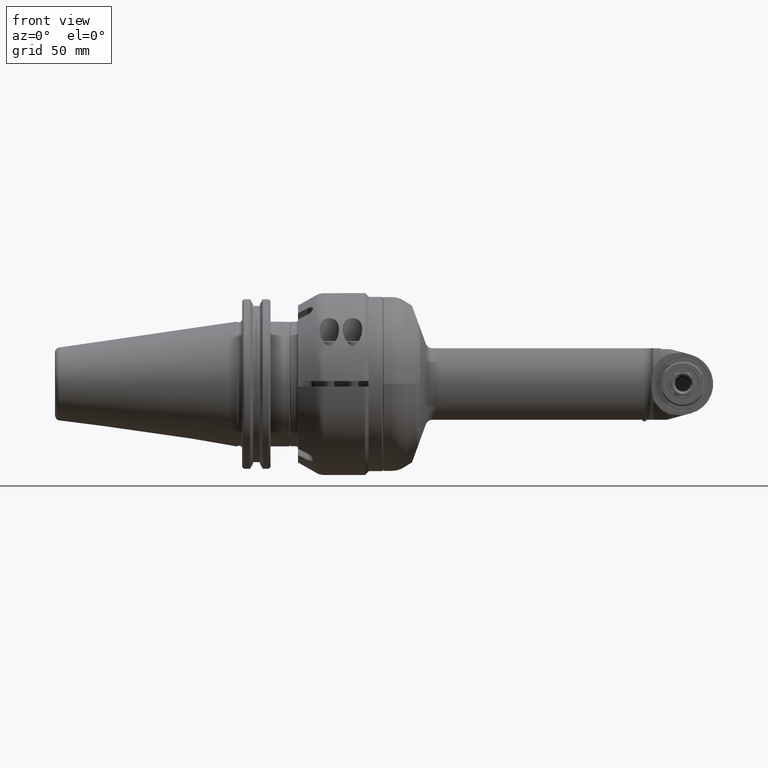
[diagram: clean part render]
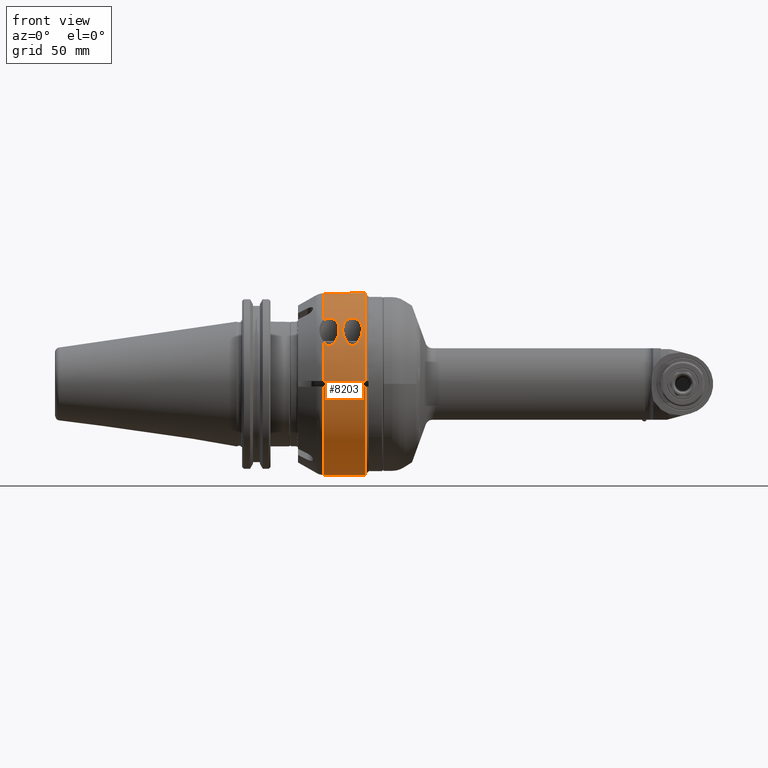
[diagram: same view with one face highlighted and labeled with its STEP entity id]
A machine part, front view. The second image highlights one B-rep face of the part: STEP entity #8203.
In plain terms, the highlighted cylindrical surface (partial cylindrical patch) has radius 51 mm, axis along (1, 0, 0).
Its self-contained STEP definition (entity closure, byte-faithful):
#511=FACE_BOUND('',#1630,.T.);
#713=B_SPLINE_CURVE_WITH_KNOTS('',3,(#12180,#12181,#12182,#12183,#12184,
#12185),.UNSPECIFIED.,.F.,.F.,(4,2,4),(-0.351622839102922,-0.201072510356838,
0.),.UNSPECIFIED.);
#714=B_SPLINE_CURVE_WITH_KNOTS('',3,(#12187,#12188,#12189,#12190,#12191,
#12192,#12193,#12194,#12195,#12196,#12197,#12198,#12199,#12200,#12201,#12202,
#12203,#12204,#12205,#12206,#12207,#12208,#12209,#12210,#12211,#12212),
 .UNSPECIFIED.,.F.,.F.,(4,2,2,2,2,2,2,2,2,2,2,2,4),(0.,0.201072510356838,
0.402145020713677,0.729275948801668,1.05640687688966,1.45814522272358,1.85988356855749,
2.08063520459886,2.19101102261954,2.30138684064023,2.41176265866091,2.52213847668159,
2.7154535046118),.UNSPECIFIED.);
#715=B_SPLINE_CURVE_WITH_KNOTS('',3,(#12218,#12219,#12220,#12221,#12222,
#12223,#12224,#12225,#12226,#12227,#12228,#12229,#12230,#12231,#12232,#12233,
#12234,#12235,#12236,#12237,#12238,#12239,#12240),.UNSPECIFIED.,.F.,.F.,
(4,2,2,2,2,3,2,2,2,2,4),(-1.24497996375057,-0.843241617916652,-0.441503272082734,
-0.220751636041367,-0.110375818020684,0.,0.110375818020684,0.220751636041367,
0.441503272082734,0.843241617916652,1.24497996375057),.UNSPECIFIED.);
#716=B_SPLINE_CURVE_WITH_KNOTS('',3,(#12241,#12242,#12243,#12244,#12245,
#12246,#12247,#12248,#12249,#12250,#12251,#12252,#12253,#12254,#12255,#12256,
#12257,#12258),.UNSPECIFIED.,.F.,.F.,(4,2,2,2,2,2,2,2,4),(1.24497996375057,
1.57211089183856,1.89924181992655,2.10031433028339,2.30138684064023,2.50245935099707,
2.70353186135391,3.0306627894419,3.35779371752989),.UNSPECIFIED.);
#1140=FACE_OUTER_BOUND('',#1629,.T.);
#1629=EDGE_LOOP('',(#5702,#5703,#5704,#5705,#5706,#5707,#5708,#5709,#5710,
#5711,#5712));
#1630=EDGE_LOOP('',(#5713,#5714));
#2186=LINE('',#12123,#2735);
#2188=LINE('',#12127,#2737);
#2194=LINE('',#12174,#2743);
#2195=LINE('',#12215,#2744);
#2735=VECTOR('',#9738,20.23205080757);
#2737=VECTOR('',#9740,20.23205080757);
#2743=VECTOR('',#9752,23.23206191748);
#2744=VECTOR('',#9761,23.23206611221);
#3287=CIRCLE('',#8808,51.);
#3288=CIRCLE('',#8809,51.);
#3289=CIRCLE('',#8810,51.);
#3290=CIRCLE('',#8811,51.);
#3291=CIRCLE('',#8812,51.);
#3693=VERTEX_POINT('',#12121);
#3694=VERTEX_POINT('',#12122);
#3695=VERTEX_POINT('',#12124);
#3696=VERTEX_POINT('',#12126);
#3706=VERTEX_POINT('',#12170);
#3707=VERTEX_POINT('',#12171);
#3708=VERTEX_POINT('',#12173);
#3709=VERTEX_POINT('',#12177);
#3710=VERTEX_POINT('',#12179);
#3711=VERTEX_POINT('',#12186);
#3712=VERTEX_POINT('',#12213);
#3713=VERTEX_POINT('',#12216);
#3714=VERTEX_POINT('',#12217);
#4483=EDGE_CURVE('',#3693,#3694,#2186,.T.);
#4485=EDGE_CURVE('',#3696,#3695,#2188,.T.);
#4496=EDGE_CURVE('',#3706,#3707,#3287,.T.);
#4497=EDGE_CURVE('',#3706,#3708,#2194,.T.);
#4498=EDGE_CURVE('',#3696,#3708,#3288,.T.);
#4499=EDGE_CURVE('',#3693,#3695,#3289,.T.);
#4500=EDGE_CURVE('',#3709,#3694,#3290,.T.);
#4501=EDGE_CURVE('',#3709,#3710,#713,.T.);
#4502=EDGE_CURVE('',#3710,#3711,#714,.T.);
#4503=EDGE_CURVE('',#3712,#3711,#3291,.T.);
#4504=EDGE_CURVE('',#3712,#3707,#2195,.T.);
#4505=EDGE_CURVE('',#3713,#3714,#715,.T.);
#4506=EDGE_CURVE('',#3714,#3713,#716,.T.);
#5702=ORIENTED_EDGE('',*,*,#4496,.F.);
#5703=ORIENTED_EDGE('',*,*,#4497,.T.);
#5704=ORIENTED_EDGE('',*,*,#4498,.F.);
#5705=ORIENTED_EDGE('',*,*,#4485,.T.);
#5706=ORIENTED_EDGE('',*,*,#4499,.F.);
#5707=ORIENTED_EDGE('',*,*,#4483,.T.);
#5708=ORIENTED_EDGE('',*,*,#4500,.F.);
#5709=ORIENTED_EDGE('',*,*,#4501,.T.);
#5710=ORIENTED_EDGE('',*,*,#4502,.T.);
#5711=ORIENTED_EDGE('',*,*,#4503,.F.);
#5712=ORIENTED_EDGE('',*,*,#4504,.T.);
#5713=ORIENTED_EDGE('',*,*,#4505,.T.);
#5714=ORIENTED_EDGE('',*,*,#4506,.T.);
#8081=CYLINDRICAL_SURFACE('',#8807,51.);
#8203=ADVANCED_FACE('',(#1140,#511),#8081,.T.);
#8807=AXIS2_PLACEMENT_3D('',#12169,#9748,#9749);
#8808=AXIS2_PLACEMENT_3D('',#12172,#9750,#9751);
#8809=AXIS2_PLACEMENT_3D('',#12175,#9753,#9754);
#8810=AXIS2_PLACEMENT_3D('',#12176,#9755,#9756);
#8811=AXIS2_PLACEMENT_3D('',#12178,#9757,#9758);
#8812=AXIS2_PLACEMENT_3D('',#12214,#9759,#9760);
#9738=DIRECTION('',(-1.,0.,0.));
#9740=DIRECTION('',(1.,0.,0.));
#9748=DIRECTION('center_axis',(1.,0.,0.));
#9749=DIRECTION('ref_axis',(0.,1.,1.05873409698834E-10));
#9750=DIRECTION('center_axis',(1.,0.,0.));
#9751=DIRECTION('ref_axis',(0.,1.,0.));
#9752=DIRECTION('',(-1.,-3.620724304585E-11,1.230523343791E-9));
#9753=DIRECTION('center_axis',(-1.,0.,0.));
#9754=DIRECTION('ref_axis',(0.,0.818627450980411,-0.574324904998308));
#9755=DIRECTION('center_axis',(-1.,0.,0.));
#9756=DIRECTION('ref_axis',(0.,1.,0.));
#9757=DIRECTION('center_axis',(-1.,0.,0.));
#9758=DIRECTION('ref_axis',(0.,-0.711205879844998,0.702983781088798));
#9759=DIRECTION('center_axis',(-1.,0.,0.));
#9760=DIRECTION('ref_axis',(0.,-0.999567380468613,0.0294117647058804));
#9761=DIRECTION('',(1.,4.9878538981E-11,1.695142412605E-9));
#12121=CARTESIAN_POINT('',(-17.,41.75,29.29057015492));
#12122=CARTESIAN_POINT('',(-37.23205080757,41.75,29.29057015492));
#12123=CARTESIAN_POINT('',(-17.,41.75,29.29057015492));
#12124=CARTESIAN_POINT('',(-17.,41.75,-29.29057015492));
#12126=CARTESIAN_POINT('',(-37.23205080757,41.75,-29.29057015492));
#12127=CARTESIAN_POINT('',(-37.23205080757,41.75,-29.29057015492));
#12169=CARTESIAN_POINT('Origin',(-43.,0.,0.));
#12170=CARTESIAN_POINT('',(-14.,-50.9779364039,-1.5));
#12171=CARTESIAN_POINT('',(-14.,-50.9779364039,1.5));
#12172=CARTESIAN_POINT('Origin',(-14.,0.,0.));
#12173=CARTESIAN_POINT('',(-37.2320508150874,-50.9779364043201,-1.49999998570621));
#12174=CARTESIAN_POINT('',(-14.,-50.9779364039,-1.5));
#12175=CARTESIAN_POINT('Origin',(-37.23205080757,0.,0.));
#12176=CARTESIAN_POINT('Origin',(-17.,0.,0.));
#12177=CARTESIAN_POINT('',(-37.23205080757,-36.27149987209,35.85217283553));
#12178=CARTESIAN_POINT('Origin',(-37.23205080757,0.,0.));
#12179=CARTESIAN_POINT('',(-34.,-35.2216512827,36.8840789626077));
#12180=CARTESIAN_POINT('Ctrl Pts',(-37.2320508075659,-36.2714998720946,
35.8521728355289));
#12181=CARTESIAN_POINT('Ctrl Pts',(-36.872037357752,-36.0100297211167,36.116701141561));
#12182=CARTESIAN_POINT('Ctrl Pts',(-36.44824163253,-35.7715494474255,36.3518780139684));
#12183=CARTESIAN_POINT('Ctrl Pts',(-35.364786222781,-35.3524177755747,36.760284817991));
#12184=CARTESIAN_POINT('Ctrl Pts',(-34.6702417011895,-35.2216512827,36.8840789626077));
#12185=CARTESIAN_POINT('Ctrl Pts',(-34.,-35.2216512827,36.8840789626077));
#12186=CARTESIAN_POINT('',(-37.23205080757,-45.1718026933,23.67505525733));
#12187=CARTESIAN_POINT('Ctrl Pts',(-34.,-35.2216512827,36.8840789626077));
#12188=CARTESIAN_POINT('Ctrl Pts',(-33.3297582988105,-35.2216512827,36.8840789626077));
#12189=CARTESIAN_POINT('Ctrl Pts',(-32.635213777219,-35.3524177755747,36.760284817991));
#12190=CARTESIAN_POINT('Ctrl Pts',(-31.3960843756493,-35.8317714924385,
36.2931969488346));
#12191=CARTESIAN_POINT('Ctrl Pts',(-30.850648027741,-36.1782586100401,35.9500095679527));
#12192=CARTESIAN_POINT('Ctrl Pts',(-29.7372511904936,-37.1297545962508,
34.9727734951554));
#12193=CARTESIAN_POINT('Ctrl Pts',(-29.2413245727597,-37.8511872002494,
34.1986505928683));
#12194=CARTESIAN_POINT('Ctrl Pts',(-28.6224690823914,-39.319256727814,32.5000944024137));
#12195=CARTESIAN_POINT('Ctrl Pts',(-28.5,-40.0651617871045,31.5748612439451));
#12196=CARTESIAN_POINT('Ctrl Pts',(-28.5,-41.5278636624324,29.6349422633357));
#12197=CARTESIAN_POINT('Ctrl Pts',(-28.6828935944427,-42.355228362554,28.4428786872814));
#12198=CARTESIAN_POINT('Ctrl Pts',(-29.4026147018995,-43.8528254301532,
26.0747465478085));
#12199=CARTESIAN_POINT('Ctrl Pts',(-29.9314939989374,-44.5246315328702,
24.8972647332227));
#12200=CARTESIAN_POINT('Ctrl Pts',(-31.001270294294,-45.3572445916551,23.326334884601));
#12201=CARTESIAN_POINT('Ctrl Pts',(-31.480842706606,-45.6482368635351,22.7481982089167));
#12202=CARTESIAN_POINT('Ctrl Pts',(-32.3308258147761,-45.9710043968678,
22.0845481334827));
#12203=CARTESIAN_POINT('Ctrl Pts',(-32.6354867073276,-46.0599916909384,
21.8974583438779));
#12204=CARTESIAN_POINT('Ctrl Pts',(-33.286197560497,-46.1851905126261,21.6321449190877));
#12205=CARTESIAN_POINT('Ctrl Pts',(-33.6320806065977,-46.2216512827,21.5536296873747));
#12206=CARTESIAN_POINT('Ctrl Pts',(-34.3679193934023,-46.2216512827,21.5536296873747));
#12207=CARTESIAN_POINT('Ctrl Pts',(-34.713802439503,-46.1851905126261,21.6321449190877));
#12208=CARTESIAN_POINT('Ctrl Pts',(-35.3645132926724,-46.0599916909384,
21.8974583438779));
#12209=CARTESIAN_POINT('Ctrl Pts',(-35.6691741852239,-45.9710043968678,
22.0845481334827));
#12210=CARTESIAN_POINT('Ctrl Pts',(-36.4487292658961,-45.6749807840842,
22.6932093917128));
#12211=CARTESIAN_POINT('Ctrl Pts',(-36.8782785168307,-45.4287400225037,
23.1848210334514));
#12212=CARTESIAN_POINT('Ctrl Pts',(-37.2320508075737,-45.1718026932997,
23.6750552573295));
#12213=CARTESIAN_POINT('',(-37.2320508231036,-50.9779364044793,1.499999980309));
#12214=CARTESIAN_POINT('Origin',(-37.23205080757,0.,0.));
#12215=CARTESIAN_POINT('',(-37.23206611221,-50.97793640506,1.499999960618));
#12216=CARTESIAN_POINT('',(-15.5,-40.7216512827,30.70418728464));
#12217=CARTESIAN_POINT('',(-26.5,-40.7216512827,30.7041872846388));
#12218=CARTESIAN_POINT('Ctrl Pts',(-15.5,-40.7216512827,30.7041872846388));
#12219=CARTESIAN_POINT('Ctrl Pts',(-15.5,-41.5278636624324,29.6349422633357));
#12220=CARTESIAN_POINT('Ctrl Pts',(-15.6828935944427,-42.355228362554,28.4428786872814));
#12221=CARTESIAN_POINT('Ctrl Pts',(-16.4026147018995,-43.8528254301532,
26.0747465478085));
#12222=CARTESIAN_POINT('Ctrl Pts',(-16.9314939989374,-44.5246315328702,
24.8972647332227));
#12223=CARTESIAN_POINT('Ctrl Pts',(-18.001270294294,-45.3572445916551,23.326334884601));
#12224=CARTESIAN_POINT('Ctrl Pts',(-18.480842706606,-45.6482368635351,22.7481982089167));
#12225=CARTESIAN_POINT('Ctrl Pts',(-19.3308258147761,-45.9710043968678,
22.0845481334827));
#12226=CARTESIAN_POINT('Ctrl Pts',(-19.6354867073276,-46.0599916909384,
21.8974583438779));
#12227=CARTESIAN_POINT('Ctrl Pts',(-20.286197560497,-46.1851905126261,21.6321449190877));
#12228=CARTESIAN_POINT('Ctrl Pts',(-20.6320806065977,-46.2216512827,21.5536296873747));
#12229=CARTESIAN_POINT('Ctrl Pts',(-21.,-46.2216512827,21.5536296873747));
#12230=CARTESIAN_POINT('Ctrl Pts',(-21.3679193934023,-46.2216512827,21.5536296873747));
#12231=CARTESIAN_POINT('Ctrl Pts',(-21.713802439503,-46.1851905126261,21.6321449190877));
#12232=CARTESIAN_POINT('Ctrl Pts',(-22.3645132926724,-46.0599916909384,
21.8974583438779));
#12233=CARTESIAN_POINT('Ctrl Pts',(-22.6691741852239,-45.9710043968678,
22.0845481334827));
#12234=CARTESIAN_POINT('Ctrl Pts',(-23.519157293394,-45.6482368635351,22.7481982089167));
#12235=CARTESIAN_POINT('Ctrl Pts',(-23.998729705706,-45.3572445916551,23.326334884601));
#12236=CARTESIAN_POINT('Ctrl Pts',(-25.0685060010626,-44.5246315328702,
24.8972647332227));
#12237=CARTESIAN_POINT('Ctrl Pts',(-25.5973852981005,-43.8528254301532,
26.0747465478085));
#12238=CARTESIAN_POINT('Ctrl Pts',(-26.3171064055573,-42.355228362554,28.4428786872814));
#12239=CARTESIAN_POINT('Ctrl Pts',(-26.5,-41.5278636624324,29.6349422633357));
#12240=CARTESIAN_POINT('Ctrl Pts',(-26.5,-40.7216512827,30.7041872846388));
#12241=CARTESIAN_POINT('Ctrl Pts',(-26.5,-40.7216512827,30.7041872846388));
#12242=CARTESIAN_POINT('Ctrl Pts',(-26.5,-40.0651617871045,31.5748612439451));
#12243=CARTESIAN_POINT('Ctrl Pts',(-26.3775309176086,-39.319256727814,32.5000944024137));
#12244=CARTESIAN_POINT('Ctrl Pts',(-25.7586754272403,-37.8511872002494,
34.1986505928683));
#12245=CARTESIAN_POINT('Ctrl Pts',(-25.2627488095064,-37.1297545962508,
34.9727734951554));
#12246=CARTESIAN_POINT('Ctrl Pts',(-24.149351972259,-36.1782586100401,35.9500095679527));
#12247=CARTESIAN_POINT('Ctrl Pts',(-23.6039156243507,-35.8317714924385,
36.2931969488346));
#12248=CARTESIAN_POINT('Ctrl Pts',(-22.364786222781,-35.3524177755747,36.760284817991));
#12249=CARTESIAN_POINT('Ctrl Pts',(-21.6702417011895,-35.2216512827,36.8840789626077));
#12250=CARTESIAN_POINT('Ctrl Pts',(-20.3297582988105,-35.2216512827,36.8840789626077));
#12251=CARTESIAN_POINT('Ctrl Pts',(-19.635213777219,-35.3524177755747,36.760284817991));
#12252=CARTESIAN_POINT('Ctrl Pts',(-18.3960843756493,-35.8317714924385,
36.2931969488346));
#12253=CARTESIAN_POINT('Ctrl Pts',(-17.850648027741,-36.1782586100401,35.9500095679527));
#12254=CARTESIAN_POINT('Ctrl Pts',(-16.7372511904936,-37.1297545962508,
34.9727734951554));
#12255=CARTESIAN_POINT('Ctrl Pts',(-16.2413245727597,-37.8511872002494,
34.1986505928683));
#12256=CARTESIAN_POINT('Ctrl Pts',(-15.6224690823914,-39.319256727814,32.5000944024137));
#12257=CARTESIAN_POINT('Ctrl Pts',(-15.5,-40.0651617871045,31.5748612439451));
#12258=CARTESIAN_POINT('Ctrl Pts',(-15.5,-40.7216512827,30.7041872846388));